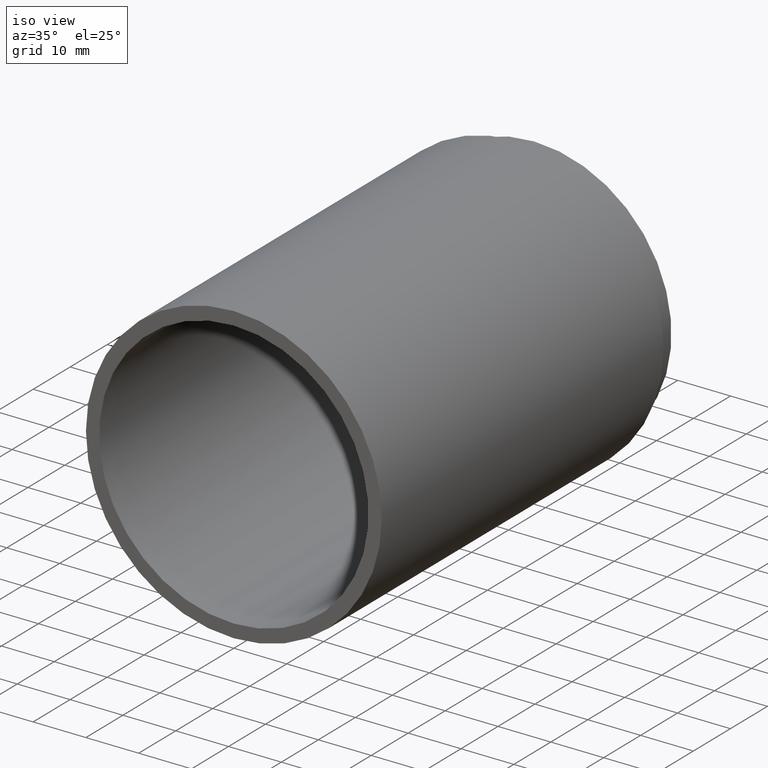
[diagram: clean part render]
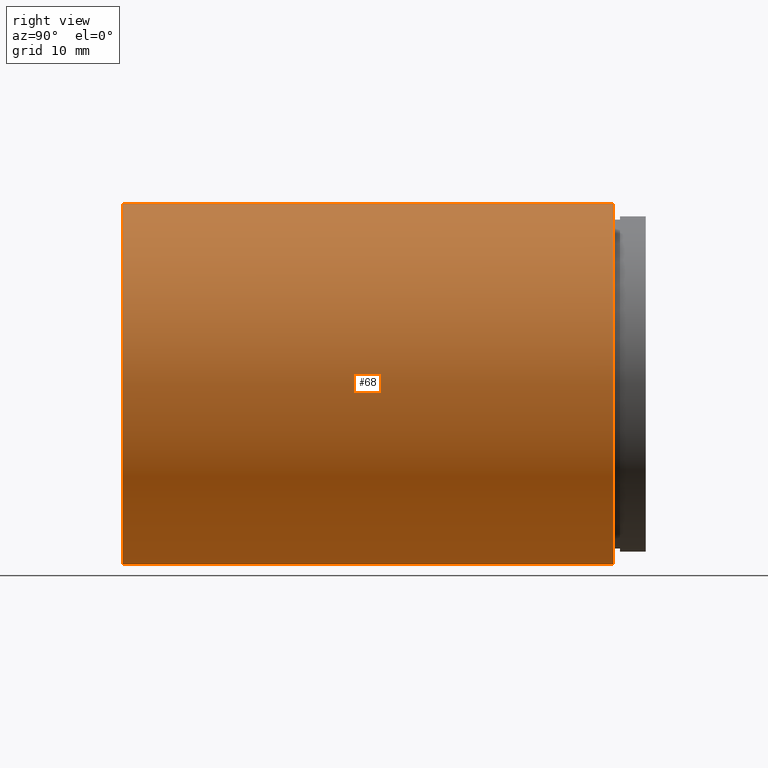
[diagram: tour spotlight — one face highlighted and labeled with its STEP entity id]
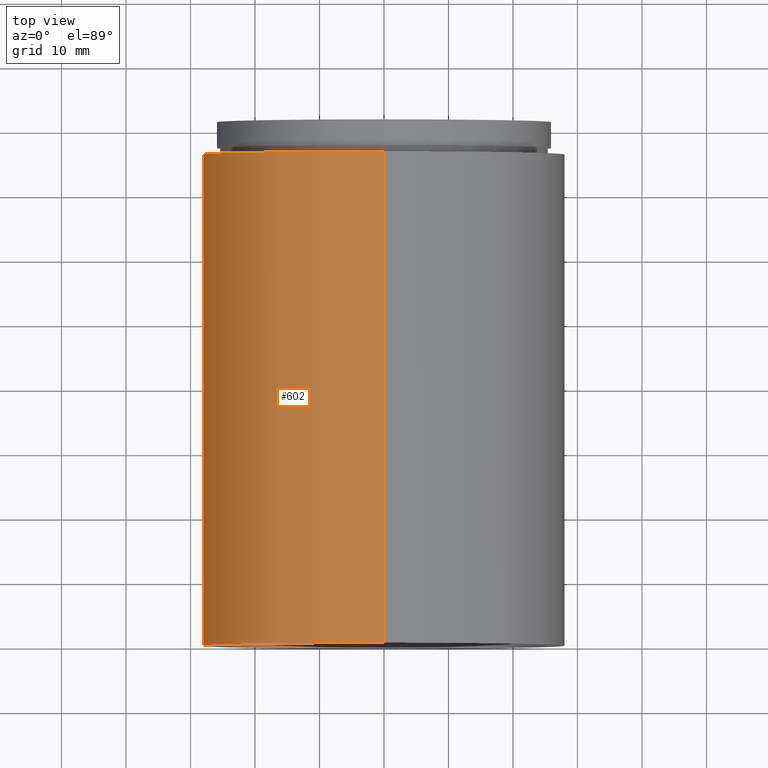
[diagram: tour spotlight — one face highlighted and labeled with its STEP entity id]
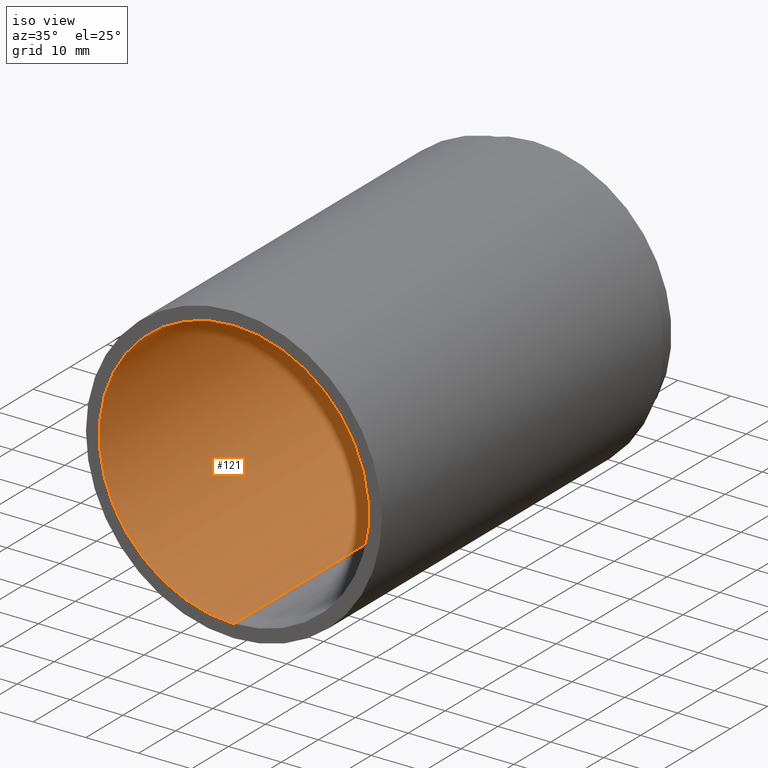
[diagram: tour spotlight — one face highlighted and labeled with its STEP entity id]
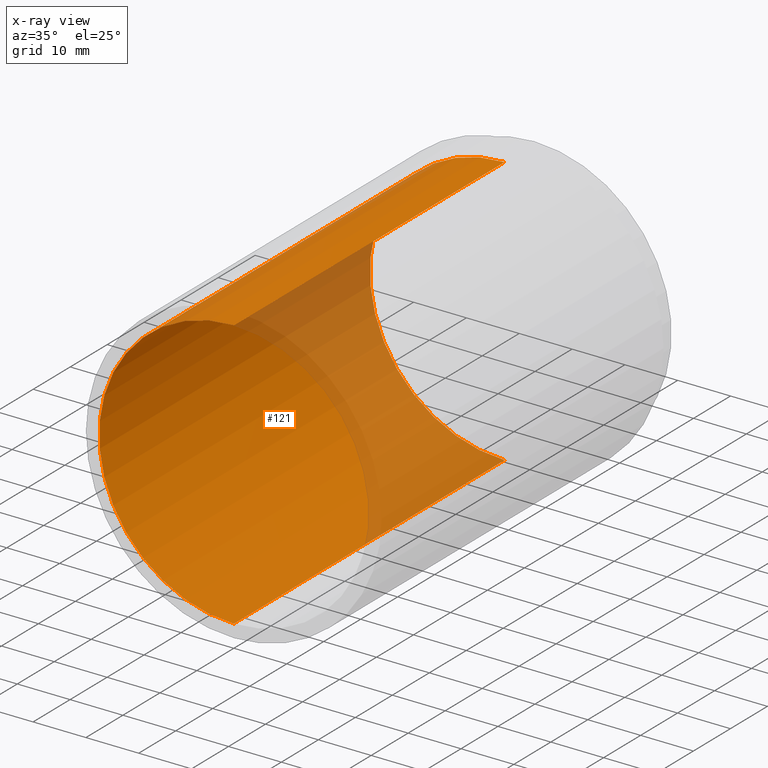
[diagram: x-ray of the same camera — body ghosted, this tour face saturated]
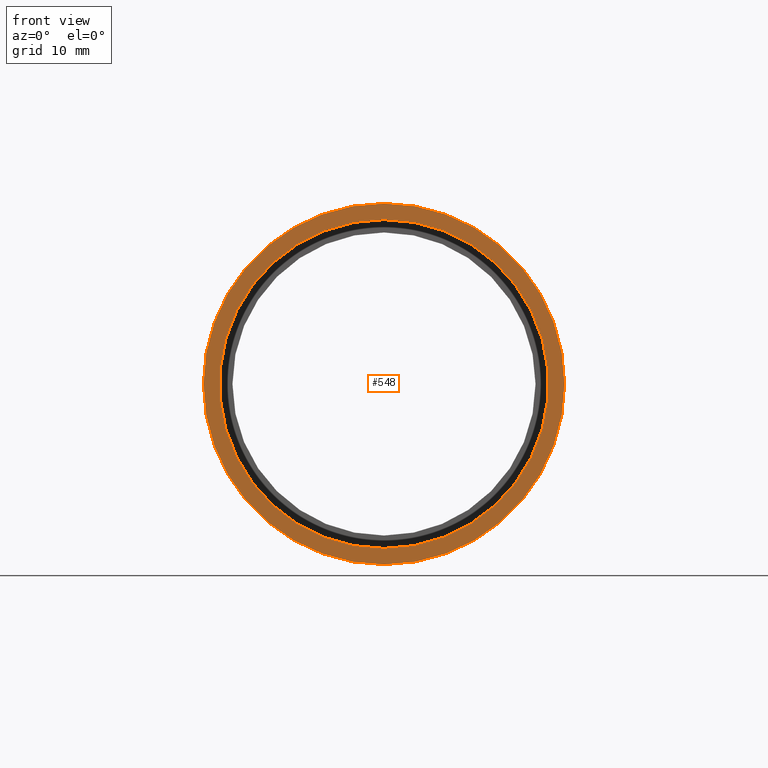
[diagram: tour spotlight — one face highlighted and labeled with its STEP entity id]
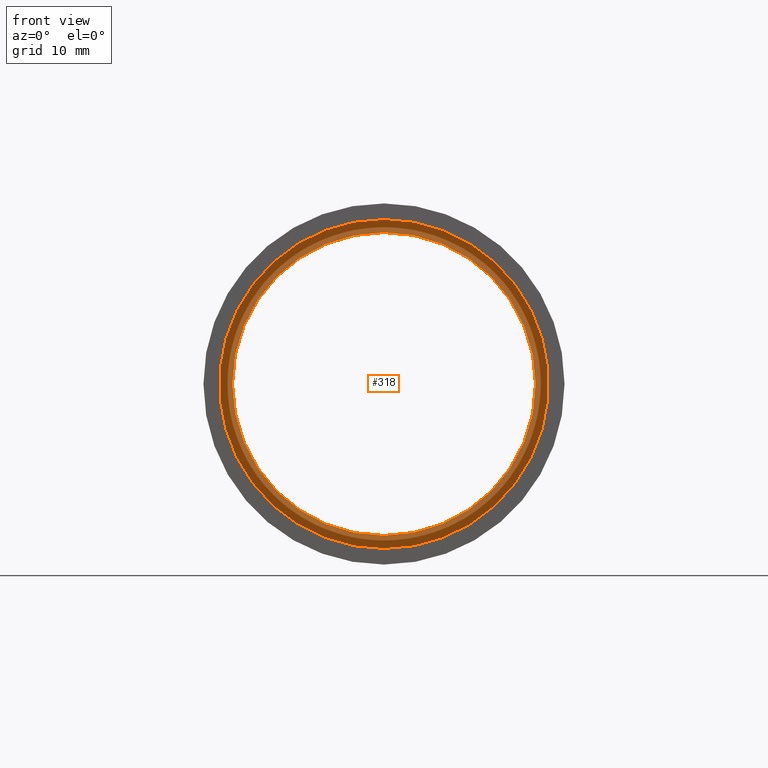
[diagram: tour spotlight — one face highlighted and labeled with its STEP entity id]
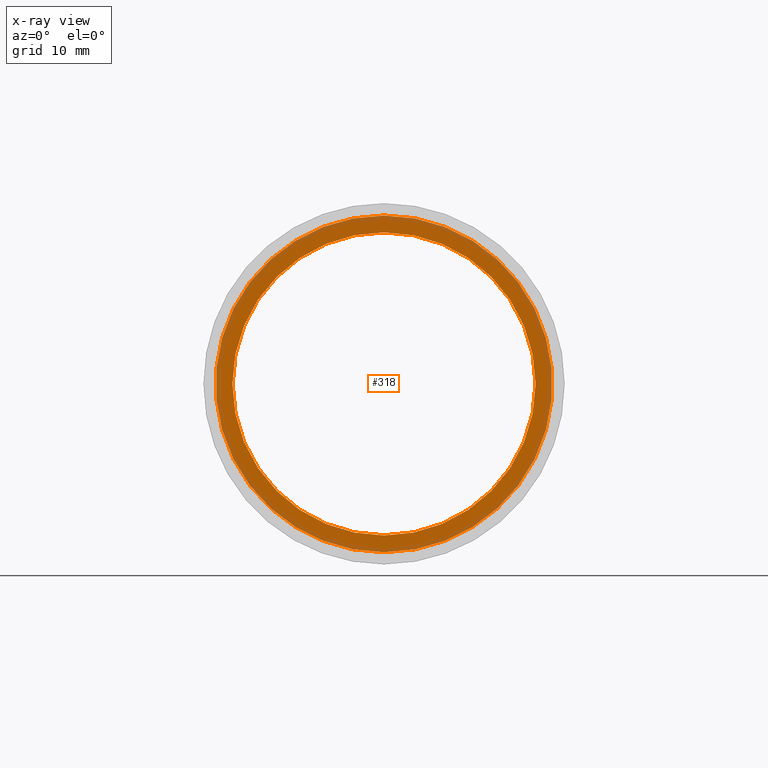
[diagram: x-ray of the same camera — body ghosted, this tour face saturated]
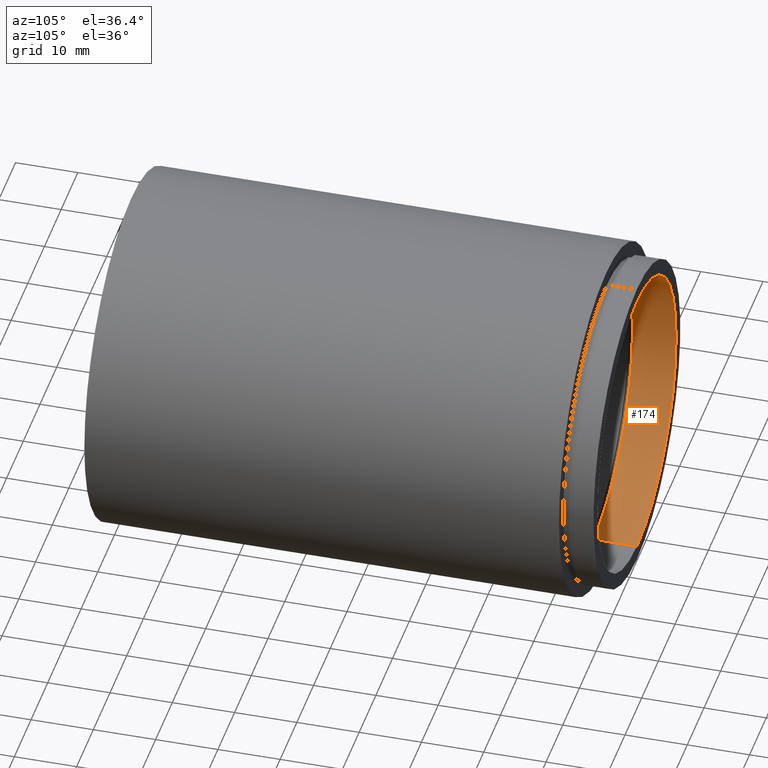
[diagram: tour spotlight — one face highlighted and labeled with its STEP entity id]
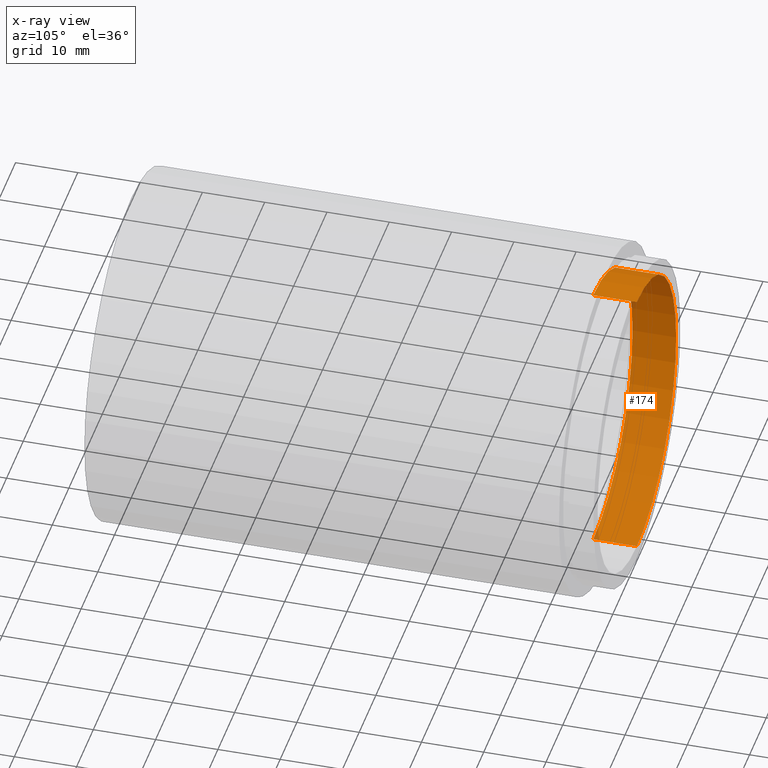
[diagram: x-ray of the same camera — body ghosted, this tour face saturated]
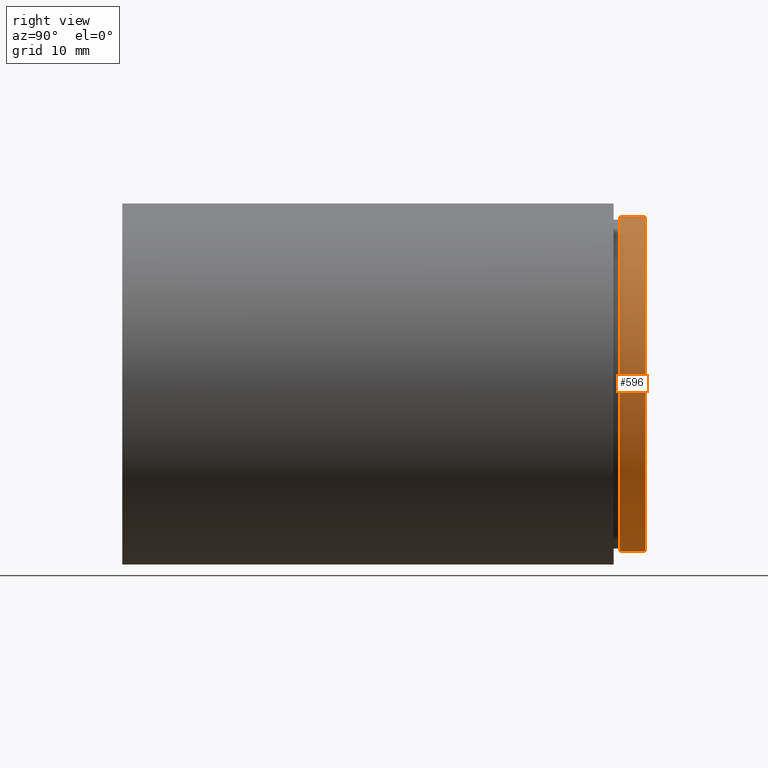
[diagram: tour spotlight — one face highlighted and labeled with its STEP entity id]
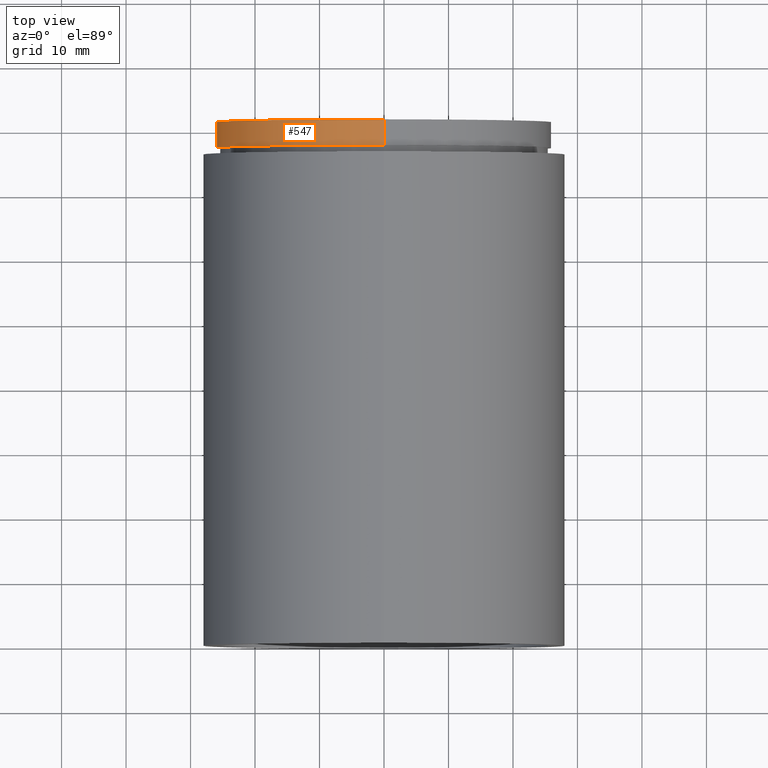
[diagram: tour spotlight — one face highlighted and labeled with its STEP entity id]
A machine part: a face-by-face anatomy tour. The part has 18 B-rep faces; the first image is the clean iso view, then the 8 largest visible faces are spotlighted one at a time (largest first), each with its STEP entity span.

Face 1 — right view, entity #68. In plain terms, the highlighted cylindrical surface (partial cylindrical patch) has radius 28 mm, axis along (-0, 1, -0).
Definition (entity closure, byte-faithful):
#4 = CARTESIAN_POINT ( 'NONE',  ( 3.429011037612590500E-015, 76.19999999999998900, -28.00000000000001100 ) ) ;
#40 = DIRECTION ( 'NONE',  ( -0.0000000000000000000, 1.000000000000000000, -0.0000000000000000000 ) ) ;
#56 = DIRECTION ( 'NONE',  ( -0.0000000000000000000, 1.000000000000000000, -0.0000000000000000000 ) ) ;
#65 = CARTESIAN_POINT ( 'NONE',  ( 0.0000000000000000000, -2.775557561562891400E-014, 0.0000000000000000000 ) ) ;
#68 = ADVANCED_FACE ( 'NONE', ( #475 ), #287, .T. ) ;
#74 = DIRECTION ( 'NONE',  ( -0.0000000000000000000, 1.000000000000000000, -0.0000000000000000000 ) ) ;
#90 = CARTESIAN_POINT ( 'NONE',  ( 3.429011037612590500E-015, 161.3761669434274500, -28.00000000000001400 ) ) ;
#126 = VECTOR ( 'NONE', #40, 1000.000000000000000 ) ;
#136 = CIRCLE ( 'NONE', #562, 28.00000000000001100 ) ;
#148 = ORIENTED_EDGE ( 'NONE', *, *, #420, .T. ) ;
#152 = CARTESIAN_POINT ( 'NONE',  ( 0.0000000000000000000, -2.775557561562891400E-014, 28.00000000000001800 ) ) ;
#191 = VECTOR ( 'NONE', #56, 1000.000000000000000 ) ;
#200 = DIRECTION ( 'NONE',  ( -0.0000000000000000000, 1.000000000000000000, -0.0000000000000000000 ) ) ;
#205 = EDGE_CURVE ( 'NONE', #393, #616, #551, .T. ) ;
#216 = CARTESIAN_POINT ( 'NONE',  ( 0.0000000000000000000, 76.19999999999998900, 28.00000000000001100 ) ) ;
#217 = ORIENTED_EDGE ( 'NONE', *, *, #463, .T. ) ;
#227 = DIRECTION ( 'NONE',  ( 0.0000000000000000000, 0.0000000000000000000, 1.000000000000000000 ) ) ;
#235 = CARTESIAN_POINT ( 'NONE',  ( 0.0000000000000000000, 161.3761669434274500, 28.00000000000001400 ) ) ;
#237 = ORIENTED_EDGE ( 'NONE', *, *, #399, .F. ) ;
#241 = CIRCLE ( 'NONE', #467, 28.00000000000001800 ) ;
#278 = ORIENTED_EDGE ( 'NONE', *, *, #205, .F. ) ;
#287 = CYLINDRICAL_SURFACE ( 'NONE', #499, 28.00000000000001400 ) ;
#338 = VERTEX_POINT ( 'NONE', #4 ) ;
#349 = DIRECTION ( 'NONE',  ( 0.0000000000000000000, 0.0000000000000000000, 1.000000000000000000 ) ) ;
#365 = EDGE_LOOP ( 'NONE', ( #217, #148, #237, #278 ) ) ;
#382 = LINE ( 'NONE', #90, #191 ) ;
#393 = VERTEX_POINT ( 'NONE', #152 ) ;
#399 = EDGE_CURVE ( 'NONE', #616, #338, #136, .T. ) ;
#420 = EDGE_CURVE ( 'NONE', #571, #338, #382, .T. ) ;
#444 = CARTESIAN_POINT ( 'NONE',  ( 3.429011037612591200E-015, -2.775557561562891400E-014, -28.00000000000002100 ) ) ;
#457 = CARTESIAN_POINT ( 'NONE',  ( 0.0000000000000000000, 161.3761669434274500, 0.0000000000000000000 ) ) ;
#463 = EDGE_CURVE ( 'NONE', #393, #571, #241, .T. ) ;
#467 = AXIS2_PLACEMENT_3D ( 'NONE', #65, #535, #586 ) ;
#475 = FACE_OUTER_BOUND ( 'NONE', #365, .T. ) ;
#485 = CARTESIAN_POINT ( 'NONE',  ( 0.0000000000000000000, 76.19999999999998900, 0.0000000000000000000 ) ) ;
#499 = AXIS2_PLACEMENT_3D ( 'NONE', #457, #74, #227 ) ;
#535 = DIRECTION ( 'NONE',  ( -0.0000000000000000000, 1.000000000000000000, -0.0000000000000000000 ) ) ;
#551 = LINE ( 'NONE', #235, #126 ) ;
#562 = AXIS2_PLACEMENT_3D ( 'NONE', #485, #200, #349 ) ;
#571 = VERTEX_POINT ( 'NONE', #444 ) ;
#586 = DIRECTION ( 'NONE',  ( 0.0000000000000000000, 0.0000000000000000000, 1.000000000000000000 ) ) ;
#616 = VERTEX_POINT ( 'NONE', #216 ) ;

Face 2 — top view, entity #602. In plain terms, the highlighted cylindrical surface (partial cylindrical patch) has radius 28 mm, axis along (-0, 1, -0).
Definition (entity closure, byte-faithful):
#4 = CARTESIAN_POINT ( 'NONE',  ( 3.429011037612590500E-015, 76.19999999999998900, -28.00000000000001100 ) ) ;
#17 = CARTESIAN_POINT ( 'NONE',  ( 0.0000000000000000000, 161.3761669434274500, 0.0000000000000000000 ) ) ;
#40 = DIRECTION ( 'NONE',  ( -0.0000000000000000000, 1.000000000000000000, -0.0000000000000000000 ) ) ;
#56 = DIRECTION ( 'NONE',  ( -0.0000000000000000000, 1.000000000000000000, -0.0000000000000000000 ) ) ;
#84 = CARTESIAN_POINT ( 'NONE',  ( 0.0000000000000000000, 76.19999999999998900, 0.0000000000000000000 ) ) ;
#90 = CARTESIAN_POINT ( 'NONE',  ( 3.429011037612590500E-015, 161.3761669434274500, -28.00000000000001400 ) ) ;
#126 = VECTOR ( 'NONE', #40, 1000.000000000000000 ) ;
#152 = CARTESIAN_POINT ( 'NONE',  ( 0.0000000000000000000, -2.775557561562891400E-014, 28.00000000000001800 ) ) ;
#160 = DIRECTION ( 'NONE',  ( 0.0000000000000000000, 0.0000000000000000000, 1.000000000000000000 ) ) ;
#182 = FACE_OUTER_BOUND ( 'NONE', #416, .T. ) ;
#186 = ORIENTED_EDGE ( 'NONE', *, *, #275, .T. ) ;
#187 = DIRECTION ( 'NONE',  ( 0.0000000000000000000, 0.0000000000000000000, 1.000000000000000000 ) ) ;
#191 = VECTOR ( 'NONE', #56, 1000.000000000000000 ) ;
#205 = EDGE_CURVE ( 'NONE', #393, #616, #551, .T. ) ;
#207 = AXIS2_PLACEMENT_3D ( 'NONE', #17, #590, #160 ) ;
#216 = CARTESIAN_POINT ( 'NONE',  ( 0.0000000000000000000, 76.19999999999998900, 28.00000000000001100 ) ) ;
#219 = ORIENTED_EDGE ( 'NONE', *, *, #205, .T. ) ;
#229 = EDGE_CURVE ( 'NONE', #338, #616, #450, .T. ) ;
#235 = CARTESIAN_POINT ( 'NONE',  ( 0.0000000000000000000, 161.3761669434274500, 28.00000000000001400 ) ) ;
#275 = EDGE_CURVE ( 'NONE', #571, #393, #380, .T. ) ;
#286 = CARTESIAN_POINT ( 'NONE',  ( 0.0000000000000000000, -2.775557561562891400E-014, 0.0000000000000000000 ) ) ;
#335 = DIRECTION ( 'NONE',  ( -0.0000000000000000000, 1.000000000000000000, -0.0000000000000000000 ) ) ;
#338 = VERTEX_POINT ( 'NONE', #4 ) ;
#380 = CIRCLE ( 'NONE', #542, 28.00000000000001800 ) ;
#382 = LINE ( 'NONE', #90, #191 ) ;
#393 = VERTEX_POINT ( 'NONE', #152 ) ;
#416 = EDGE_LOOP ( 'NONE', ( #615, #186, #219, #532 ) ) ;
#420 = EDGE_CURVE ( 'NONE', #571, #338, #382, .T. ) ;
#444 = CARTESIAN_POINT ( 'NONE',  ( 3.429011037612591200E-015, -2.775557561562891400E-014, -28.00000000000002100 ) ) ;
#450 = CIRCLE ( 'NONE', #518, 28.00000000000001100 ) ;
#472 = DIRECTION ( 'NONE',  ( -0.0000000000000000000, 1.000000000000000000, -0.0000000000000000000 ) ) ;
#517 = CYLINDRICAL_SURFACE ( 'NONE', #207, 28.00000000000001400 ) ;
#518 = AXIS2_PLACEMENT_3D ( 'NONE', #84, #472, #187 ) ;
#532 = ORIENTED_EDGE ( 'NONE', *, *, #229, .F. ) ;
#542 = AXIS2_PLACEMENT_3D ( 'NONE', #286, #335, #617 ) ;
#551 = LINE ( 'NONE', #235, #126 ) ;
#571 = VERTEX_POINT ( 'NONE', #444 ) ;
#590 = DIRECTION ( 'NONE',  ( -0.0000000000000000000, 1.000000000000000000, -0.0000000000000000000 ) ) ;
#602 = ADVANCED_FACE ( 'NONE', ( #182 ), #517, .T. ) ;
#615 = ORIENTED_EDGE ( 'NONE', *, *, #420, .F. ) ;
#616 = VERTEX_POINT ( 'NONE', #216 ) ;
#617 = DIRECTION ( 'NONE',  ( 0.0000000000000000000, 0.0000000000000000000, 1.000000000000000000 ) ) ;

Face 3 — iso view, entity #121. An x-ray twin of the same camera follows (body ghosted, this face saturated) — the face is partly hidden behind the body. In plain terms, the highlighted cylindrical surface (partial cylindrical patch) has radius 25.5 mm, axis along (-0, 1, -0).
Definition (entity closure, byte-faithful):
#1 = ORIENTED_EDGE ( 'NONE', *, *, #612, .T. ) ;
#91 = LINE ( 'NONE', #411, #560 ) ;
#121 = ADVANCED_FACE ( 'NONE', ( #606 ), #259, .F. ) ;
#123 = DIRECTION ( 'NONE',  ( -0.0000000000000000000, 1.000000000000000000, -0.0000000000000000000 ) ) ;
#125 = CARTESIAN_POINT ( 'NONE',  ( 0.0000000000000000000, 161.3761669434274500, 0.0000000000000000000 ) ) ;
#130 = EDGE_CURVE ( 'NONE', #140, #289, #419, .T. ) ;
#134 = DIRECTION ( 'NONE',  ( 0.0000000000000000000, 0.0000000000000000000, 1.000000000000000000 ) ) ;
#140 = VERTEX_POINT ( 'NONE', #516 ) ;
#154 = EDGE_CURVE ( 'NONE', #140, #469, #618, .T. ) ;
#162 = AXIS2_PLACEMENT_3D ( 'NONE', #125, #281, #134 ) ;
#163 = DIRECTION ( 'NONE',  ( -0.0000000000000000000, 1.000000000000000000, -0.0000000000000000000 ) ) ;
#195 = AXIS2_PLACEMENT_3D ( 'NONE', #329, #123, #223 ) ;
#223 = DIRECTION ( 'NONE',  ( 0.0000000000000000000, 0.0000000000000000000, 1.000000000000000000 ) ) ;
#259 = CYLINDRICAL_SURFACE ( 'NONE', #162, 25.50000000000001800 ) ;
#281 = DIRECTION ( 'NONE',  ( -0.0000000000000000000, 1.000000000000000000, -0.0000000000000000000 ) ) ;
#289 = VERTEX_POINT ( 'NONE', #622 ) ;
#290 = AXIS2_PLACEMENT_3D ( 'NONE', #364, #163, #311 ) ;
#311 = DIRECTION ( 'NONE',  ( 0.0000000000000000000, 0.0000000000000000000, 1.000000000000000000 ) ) ;
#315 = VECTOR ( 'NONE', #509, 1000.000000000000000 ) ;
#329 = CARTESIAN_POINT ( 'NONE',  ( 0.0000000000000000000, -2.775557561562891400E-014, 0.0000000000000000000 ) ) ;
#364 = CARTESIAN_POINT ( 'NONE',  ( 0.0000000000000000000, 73.19999999999998900, 0.0000000000000000000 ) ) ;
#377 = ORIENTED_EDGE ( 'NONE', *, *, #154, .T. ) ;
#411 = CARTESIAN_POINT ( 'NONE',  ( 0.0000000000000000000, 161.3761669434274500, 25.50000000000001800 ) ) ;
#419 = CIRCLE ( 'NONE', #195, 25.50000000000001800 ) ;
#458 = ORIENTED_EDGE ( 'NONE', *, *, #130, .F. ) ;
#462 = VERTEX_POINT ( 'NONE', #541 ) ;
#469 = VERTEX_POINT ( 'NONE', #539 ) ;
#484 = EDGE_LOOP ( 'NONE', ( #458, #377, #1, #623 ) ) ;
#509 = DIRECTION ( 'NONE',  ( -0.0000000000000000000, 1.000000000000000000, -0.0000000000000000000 ) ) ;
#516 = CARTESIAN_POINT ( 'NONE',  ( 3.122849337825753000E-015, -2.775557561562891400E-014, -25.50000000000001800 ) ) ;
#531 = DIRECTION ( 'NONE',  ( -0.0000000000000000000, 1.000000000000000000, -0.0000000000000000000 ) ) ;
#539 = CARTESIAN_POINT ( 'NONE',  ( 3.122849337825753000E-015, 73.19999999999998900, -25.50000000000001800 ) ) ;
#541 = CARTESIAN_POINT ( 'NONE',  ( 0.0000000000000000000, 73.19999999999998900, 25.50000000000001800 ) ) ;
#557 = EDGE_CURVE ( 'NONE', #289, #462, #91, .T. ) ;
#560 = VECTOR ( 'NONE', #531, 1000.000000000000000 ) ;
#563 = CARTESIAN_POINT ( 'NONE',  ( 3.122849337825753000E-015, 161.3761669434274500, -25.50000000000001800 ) ) ;
#592 = CIRCLE ( 'NONE', #290, 25.50000000000001800 ) ;
#606 = FACE_OUTER_BOUND ( 'NONE', #484, .T. ) ;
#612 = EDGE_CURVE ( 'NONE', #469, #462, #592, .T. ) ;
#618 = LINE ( 'NONE', #563, #315 ) ;
#622 = CARTESIAN_POINT ( 'NONE',  ( 0.0000000000000000000, -2.775557561562891400E-014, 25.50000000000001800 ) ) ;
#623 = ORIENTED_EDGE ( 'NONE', *, *, #557, .F. ) ;

Face 4 — front view, entity #548. In plain terms, the highlighted planar face has unit normal (-0, 1, 0).
Definition (entity closure, byte-faithful):
#5 = AXIS2_PLACEMENT_3D ( 'NONE', #212, #544, #16 ) ;
#8 = ORIENTED_EDGE ( 'NONE', *, *, #275, .F. ) ;
#10 = EDGE_CURVE ( 'NONE', #289, #140, #236, .T. ) ;
#16 = DIRECTION ( 'NONE',  ( 0.0000000000000000000, 0.0000000000000000000, 1.000000000000000000 ) ) ;
#30 = ORIENTED_EDGE ( 'NONE', *, *, #130, .T. ) ;
#65 = CARTESIAN_POINT ( 'NONE',  ( 0.0000000000000000000, -2.775557561562891400E-014, 0.0000000000000000000 ) ) ;
#110 = DIRECTION ( 'NONE',  ( 0.0000000000000000000, 0.0000000000000000000, 1.000000000000000000 ) ) ;
#123 = DIRECTION ( 'NONE',  ( -0.0000000000000000000, 1.000000000000000000, -0.0000000000000000000 ) ) ;
#130 = EDGE_CURVE ( 'NONE', #140, #289, #419, .T. ) ;
#140 = VERTEX_POINT ( 'NONE', #516 ) ;
#141 = EDGE_LOOP ( 'NONE', ( #565, #8 ) ) ;
#150 = EDGE_LOOP ( 'NONE', ( #155, #30 ) ) ;
#152 = CARTESIAN_POINT ( 'NONE',  ( 0.0000000000000000000, -2.775557561562891400E-014, 28.00000000000001800 ) ) ;
#155 = ORIENTED_EDGE ( 'NONE', *, *, #10, .T. ) ;
#195 = AXIS2_PLACEMENT_3D ( 'NONE', #329, #123, #223 ) ;
#212 = CARTESIAN_POINT ( 'NONE',  ( 28.00000000000001800, -1.408179048343280700E-014, 0.0000000000000000000 ) ) ;
#215 = FACE_BOUND ( 'NONE', #150, .T. ) ;
#223 = DIRECTION ( 'NONE',  ( 0.0000000000000000000, 0.0000000000000000000, 1.000000000000000000 ) ) ;
#236 = CIRCLE ( 'NONE', #506, 25.50000000000001800 ) ;
#241 = CIRCLE ( 'NONE', #467, 28.00000000000001800 ) ;
#269 = CARTESIAN_POINT ( 'NONE',  ( 0.0000000000000000000, -2.775557561562891400E-014, 0.0000000000000000000 ) ) ;
#275 = EDGE_CURVE ( 'NONE', #571, #393, #380, .T. ) ;
#286 = CARTESIAN_POINT ( 'NONE',  ( 0.0000000000000000000, -2.775557561562891400E-014, 0.0000000000000000000 ) ) ;
#289 = VERTEX_POINT ( 'NONE', #622 ) ;
#329 = CARTESIAN_POINT ( 'NONE',  ( 0.0000000000000000000, -2.775557561562891400E-014, 0.0000000000000000000 ) ) ;
#335 = DIRECTION ( 'NONE',  ( -0.0000000000000000000, 1.000000000000000000, -0.0000000000000000000 ) ) ;
#380 = CIRCLE ( 'NONE', #542, 28.00000000000001800 ) ;
#393 = VERTEX_POINT ( 'NONE', #152 ) ;
#419 = CIRCLE ( 'NONE', #195, 25.50000000000001800 ) ;
#442 = PLANE ( 'NONE',  #5 ) ;
#444 = CARTESIAN_POINT ( 'NONE',  ( 3.429011037612591200E-015, -2.775557561562891400E-014, -28.00000000000002100 ) ) ;
#463 = EDGE_CURVE ( 'NONE', #393, #571, #241, .T. ) ;
#467 = AXIS2_PLACEMENT_3D ( 'NONE', #65, #535, #586 ) ;
#500 = DIRECTION ( 'NONE',  ( -0.0000000000000000000, 1.000000000000000000, -0.0000000000000000000 ) ) ;
#506 = AXIS2_PLACEMENT_3D ( 'NONE', #269, #500, #110 ) ;
#516 = CARTESIAN_POINT ( 'NONE',  ( 3.122849337825753000E-015, -2.775557561562891400E-014, -25.50000000000001800 ) ) ;
#535 = DIRECTION ( 'NONE',  ( -0.0000000000000000000, 1.000000000000000000, -0.0000000000000000000 ) ) ;
#542 = AXIS2_PLACEMENT_3D ( 'NONE', #286, #335, #617 ) ;
#544 = DIRECTION ( 'NONE',  ( -0.0000000000000000000, 1.000000000000000000, 0.0000000000000000000 ) ) ;
#548 = ADVANCED_FACE ( 'NONE', ( #591, #215 ), #442, .F. ) ;
#565 = ORIENTED_EDGE ( 'NONE', *, *, #463, .F. ) ;
#571 = VERTEX_POINT ( 'NONE', #444 ) ;
#586 = DIRECTION ( 'NONE',  ( 0.0000000000000000000, 0.0000000000000000000, 1.000000000000000000 ) ) ;
#591 = FACE_OUTER_BOUND ( 'NONE', #141, .T. ) ;
#617 = DIRECTION ( 'NONE',  ( 0.0000000000000000000, 0.0000000000000000000, 1.000000000000000000 ) ) ;
#622 = CARTESIAN_POINT ( 'NONE',  ( 0.0000000000000000000, -2.775557561562891400E-014, 25.50000000000001800 ) ) ;

Face 5 — front view, entity #318. An x-ray twin of the same camera follows (body ghosted, this face saturated) — the face is partly hidden behind the body. In plain terms, the highlighted planar face has unit normal (-0, 1, 0).
Definition (entity closure, byte-faithful):
#25 = CARTESIAN_POINT ( 'NONE',  ( 0.0000000000000000000, 74.19999999999998900, 0.0000000000000000000 ) ) ;
#29 = VERTEX_POINT ( 'NONE', #72 ) ;
#48 = CIRCLE ( 'NONE', #524, 23.50000000000001400 ) ;
#54 = AXIS2_PLACEMENT_3D ( 'NONE', #25, #423, #461 ) ;
#64 = EDGE_CURVE ( 'NONE', #29, #378, #386, .T. ) ;
#72 = CARTESIAN_POINT ( 'NONE',  ( 2.877919977996281900E-015, 74.19999999999998900, -23.50000000000001400 ) ) ;
#77 = EDGE_CURVE ( 'NONE', #378, #29, #48, .T. ) ;
#83 = VERTEX_POINT ( 'NONE', #466 ) ;
#96 = PLANE ( 'NONE',  #220 ) ;
#102 = DIRECTION ( 'NONE',  ( -0.0000000000000000000, 1.000000000000000000, -0.0000000000000000000 ) ) ;
#114 = FACE_OUTER_BOUND ( 'NONE', #502, .T. ) ;
#158 = CARTESIAN_POINT ( 'NONE',  ( 0.0000000000000000000, 74.19999999999998900, 0.0000000000000000000 ) ) ;
#177 = CARTESIAN_POINT ( 'NONE',  ( 0.0000000000000000000, 74.19999999999998900, 0.0000000000000000000 ) ) ;
#179 = ORIENTED_EDGE ( 'NONE', *, *, #489, .F. ) ;
#202 = CARTESIAN_POINT ( 'NONE',  ( 0.0000000000000000000, 74.19999999999998900, 23.50000000000001400 ) ) ;
#210 = CARTESIAN_POINT ( 'NONE',  ( 0.0000000000000000000, 74.19999999999998900, 0.0000000000000000000 ) ) ;
#220 = AXIS2_PLACEMENT_3D ( 'NONE', #488, #529, #438 ) ;
#222 = DIRECTION ( 'NONE',  ( -0.0000000000000000000, 1.000000000000000000, -0.0000000000000000000 ) ) ;
#226 = CIRCLE ( 'NONE', #266, 26.10000000000001600 ) ;
#231 = ORIENTED_EDGE ( 'NONE', *, *, #77, .T. ) ;
#250 = CIRCLE ( 'NONE', #482, 26.10000000000001600 ) ;
#257 = DIRECTION ( 'NONE',  ( 0.0000000000000000000, 0.0000000000000000000, 1.000000000000000000 ) ) ;
#266 = AXIS2_PLACEMENT_3D ( 'NONE', #210, #102, #306 ) ;
#306 = DIRECTION ( 'NONE',  ( 0.0000000000000000000, 0.0000000000000000000, 1.000000000000000000 ) ) ;
#318 = ADVANCED_FACE ( 'NONE', ( #114, #611 ), #96, .F. ) ;
#327 = DIRECTION ( 'NONE',  ( 0.0000000000000000000, 0.0000000000000000000, 1.000000000000000000 ) ) ;
#347 = EDGE_LOOP ( 'NONE', ( #231, #417 ) ) ;
#354 = CARTESIAN_POINT ( 'NONE',  ( 3.196328145774593900E-015, 74.19999999999998900, -26.10000000000001600 ) ) ;
#378 = VERTEX_POINT ( 'NONE', #202 ) ;
#386 = CIRCLE ( 'NONE', #54, 23.50000000000001400 ) ;
#417 = ORIENTED_EDGE ( 'NONE', *, *, #64, .T. ) ;
#423 = DIRECTION ( 'NONE',  ( -0.0000000000000000000, 1.000000000000000000, -0.0000000000000000000 ) ) ;
#430 = ORIENTED_EDGE ( 'NONE', *, *, #582, .F. ) ;
#438 = DIRECTION ( 'NONE',  ( 0.0000000000000000000, 0.0000000000000000000, 1.000000000000000000 ) ) ;
#461 = DIRECTION ( 'NONE',  ( 0.0000000000000000000, 0.0000000000000000000, 1.000000000000000000 ) ) ;
#466 = CARTESIAN_POINT ( 'NONE',  ( 0.0000000000000000000, 74.19999999999998900, 26.10000000000001600 ) ) ;
#482 = AXIS2_PLACEMENT_3D ( 'NONE', #158, #493, #257 ) ;
#488 = CARTESIAN_POINT ( 'NONE',  ( 26.10000000000001600, 74.19999999999998900, 0.0000000000000000000 ) ) ;
#489 = EDGE_CURVE ( 'NONE', #534, #83, #226, .T. ) ;
#493 = DIRECTION ( 'NONE',  ( -0.0000000000000000000, 1.000000000000000000, -0.0000000000000000000 ) ) ;
#502 = EDGE_LOOP ( 'NONE', ( #430, #179 ) ) ;
#524 = AXIS2_PLACEMENT_3D ( 'NONE', #177, #222, #327 ) ;
#529 = DIRECTION ( 'NONE',  ( -0.0000000000000000000, 1.000000000000000000, 0.0000000000000000000 ) ) ;
#534 = VERTEX_POINT ( 'NONE', #354 ) ;
#582 = EDGE_CURVE ( 'NONE', #83, #534, #250, .T. ) ;
#611 = FACE_BOUND ( 'NONE', #347, .T. ) ;

Face 6 — auxiliary view, entity #174. An x-ray twin of the same camera follows (body ghosted, this face saturated) — the face is partly hidden behind the body. In plain terms, the highlighted cylindrical surface (partial cylindrical patch) has radius 23.5 mm, axis along (-0, 1, -0).
Definition (entity closure, byte-faithful):
#25 = CARTESIAN_POINT ( 'NONE',  ( 0.0000000000000000000, 74.19999999999998900, 0.0000000000000000000 ) ) ;
#29 = VERTEX_POINT ( 'NONE', #72 ) ;
#42 = EDGE_CURVE ( 'NONE', #378, #246, #353, .T. ) ;
#54 = AXIS2_PLACEMENT_3D ( 'NONE', #25, #423, #461 ) ;
#64 = EDGE_CURVE ( 'NONE', #29, #378, #386, .T. ) ;
#70 = AXIS2_PLACEMENT_3D ( 'NONE', #495, #206, #585 ) ;
#72 = CARTESIAN_POINT ( 'NONE',  ( 2.877919977996281900E-015, 74.19999999999998900, -23.50000000000001400 ) ) ;
#79 = CARTESIAN_POINT ( 'NONE',  ( 0.0000000000000000000, 161.3761669434274500, 0.0000000000000000000 ) ) ;
#120 = DIRECTION ( 'NONE',  ( -0.0000000000000000000, 1.000000000000000000, -0.0000000000000000000 ) ) ;
#156 = ORIENTED_EDGE ( 'NONE', *, *, #42, .F. ) ;
#174 = ADVANCED_FACE ( 'NONE', ( #424 ), #181, .F. ) ;
#180 = DIRECTION ( 'NONE',  ( -0.0000000000000000000, 1.000000000000000000, -0.0000000000000000000 ) ) ;
#181 = CYLINDRICAL_SURFACE ( 'NONE', #316, 23.50000000000001400 ) ;
#185 = ORIENTED_EDGE ( 'NONE', *, *, #64, .F. ) ;
#202 = CARTESIAN_POINT ( 'NONE',  ( 0.0000000000000000000, 74.19999999999998900, 23.50000000000001400 ) ) ;
#206 = DIRECTION ( 'NONE',  ( -0.0000000000000000000, 1.000000000000000000, -0.0000000000000000000 ) ) ;
#211 = ORIENTED_EDGE ( 'NONE', *, *, #428, .T. ) ;
#218 = CARTESIAN_POINT ( 'NONE',  ( 0.0000000000000000000, 161.3761669434274500, 23.50000000000001400 ) ) ;
#228 = LINE ( 'NONE', #527, #326 ) ;
#246 = VERTEX_POINT ( 'NONE', #476 ) ;
#264 = VERTEX_POINT ( 'NONE', #474 ) ;
#271 = EDGE_LOOP ( 'NONE', ( #185, #526, #211, #156 ) ) ;
#316 = AXIS2_PLACEMENT_3D ( 'NONE', #79, #180, #433 ) ;
#326 = VECTOR ( 'NONE', #348, 1000.000000000000000 ) ;
#348 = DIRECTION ( 'NONE',  ( -0.0000000000000000000, 1.000000000000000000, -0.0000000000000000000 ) ) ;
#353 = LINE ( 'NONE', #218, #401 ) ;
#362 = EDGE_CURVE ( 'NONE', #29, #264, #228, .T. ) ;
#378 = VERTEX_POINT ( 'NONE', #202 ) ;
#386 = CIRCLE ( 'NONE', #54, 23.50000000000001400 ) ;
#401 = VECTOR ( 'NONE', #120, 1000.000000000000000 ) ;
#423 = DIRECTION ( 'NONE',  ( -0.0000000000000000000, 1.000000000000000000, -0.0000000000000000000 ) ) ;
#424 = FACE_OUTER_BOUND ( 'NONE', #271, .T. ) ;
#428 = EDGE_CURVE ( 'NONE', #264, #246, #540, .T. ) ;
#433 = DIRECTION ( 'NONE',  ( 0.0000000000000000000, 0.0000000000000000000, 1.000000000000000000 ) ) ;
#461 = DIRECTION ( 'NONE',  ( 0.0000000000000000000, 0.0000000000000000000, 1.000000000000000000 ) ) ;
#474 = CARTESIAN_POINT ( 'NONE',  ( 2.877919977996281900E-015, 81.19999999999998900, -23.50000000000001400 ) ) ;
#476 = CARTESIAN_POINT ( 'NONE',  ( 0.0000000000000000000, 81.19999999999998900, 23.50000000000001400 ) ) ;
#495 = CARTESIAN_POINT ( 'NONE',  ( 0.0000000000000000000, 81.19999999999998900, 0.0000000000000000000 ) ) ;
#526 = ORIENTED_EDGE ( 'NONE', *, *, #362, .T. ) ;
#527 = CARTESIAN_POINT ( 'NONE',  ( 2.877919977996281900E-015, 161.3761669434274500, -23.50000000000001400 ) ) ;
#540 = CIRCLE ( 'NONE', #70, 23.50000000000001400 ) ;
#585 = DIRECTION ( 'NONE',  ( 0.0000000000000000000, 0.0000000000000000000, 1.000000000000000000 ) ) ;

Face 7 — right view, entity #596. In plain terms, the highlighted cylindrical surface (partial cylindrical patch) has radius 26 mm, axis along (-0, 1, -0).
Definition (entity closure, byte-faithful):
#6 = DIRECTION ( 'NONE',  ( -0.0000000000000000000, 1.000000000000000000, -0.0000000000000000000 ) ) ;
#69 = VECTOR ( 'NONE', #533, 1000.000000000000000 ) ;
#97 = CARTESIAN_POINT ( 'NONE',  ( 3.184081677783119400E-015, 81.19999999999998900, -26.00000000000001100 ) ) ;
#144 = EDGE_CURVE ( 'NONE', #265, #355, #559, .T. ) ;
#147 = CARTESIAN_POINT ( 'NONE',  ( 3.184081677783119400E-015, 77.19999999999998900, -26.00000000000001100 ) ) ;
#183 = LINE ( 'NONE', #575, #282 ) ;
#198 = LINE ( 'NONE', #574, #69 ) ;
#199 = AXIS2_PLACEMENT_3D ( 'NONE', #302, #408, #297 ) ;
#201 = ORIENTED_EDGE ( 'NONE', *, *, #477, .F. ) ;
#265 = VERTEX_POINT ( 'NONE', #384 ) ;
#268 = FACE_OUTER_BOUND ( 'NONE', #545, .T. ) ;
#282 = VECTOR ( 'NONE', #6, 1000.000000000000000 ) ;
#294 = CYLINDRICAL_SURFACE ( 'NONE', #392, 26.00000000000001100 ) ;
#297 = DIRECTION ( 'NONE',  ( 0.0000000000000000000, 0.0000000000000000000, 1.000000000000000000 ) ) ;
#300 = CARTESIAN_POINT ( 'NONE',  ( 0.0000000000000000000, 81.19999999999998900, 26.00000000000001100 ) ) ;
#302 = CARTESIAN_POINT ( 'NONE',  ( 0.0000000000000000000, 81.19999999999998900, 0.0000000000000000000 ) ) ;
#308 = CIRCLE ( 'NONE', #199, 26.00000000000001100 ) ;
#313 = ORIENTED_EDGE ( 'NONE', *, *, #368, .F. ) ;
#332 = ORIENTED_EDGE ( 'NONE', *, *, #407, .T. ) ;
#355 = VERTEX_POINT ( 'NONE', #147 ) ;
#368 = EDGE_CURVE ( 'NONE', #265, #588, #198, .T. ) ;
#384 = CARTESIAN_POINT ( 'NONE',  ( 0.0000000000000000000, 77.19999999999998900, 26.00000000000001100 ) ) ;
#387 = VERTEX_POINT ( 'NONE', #97 ) ;
#392 = AXIS2_PLACEMENT_3D ( 'NONE', #406, #452, #415 ) ;
#406 = CARTESIAN_POINT ( 'NONE',  ( 0.0000000000000000000, 161.3761669434274500, 0.0000000000000000000 ) ) ;
#407 = EDGE_CURVE ( 'NONE', #355, #387, #183, .T. ) ;
#408 = DIRECTION ( 'NONE',  ( -0.0000000000000000000, 1.000000000000000000, -0.0000000000000000000 ) ) ;
#415 = DIRECTION ( 'NONE',  ( 0.0000000000000000000, 0.0000000000000000000, 1.000000000000000000 ) ) ;
#421 = CARTESIAN_POINT ( 'NONE',  ( 0.0000000000000000000, 77.19999999999998900, 0.0000000000000000000 ) ) ;
#452 = DIRECTION ( 'NONE',  ( -0.0000000000000000000, 1.000000000000000000, -0.0000000000000000000 ) ) ;
#477 = EDGE_CURVE ( 'NONE', #588, #387, #308, .T. ) ;
#533 = DIRECTION ( 'NONE',  ( -0.0000000000000000000, 1.000000000000000000, -0.0000000000000000000 ) ) ;
#545 = EDGE_LOOP ( 'NONE', ( #594, #332, #201, #313 ) ) ;
#558 = DIRECTION ( 'NONE',  ( -0.0000000000000000000, 1.000000000000000000, -0.0000000000000000000 ) ) ;
#559 = CIRCLE ( 'NONE', #568, 26.00000000000001100 ) ;
#568 = AXIS2_PLACEMENT_3D ( 'NONE', #421, #558, #608 ) ;
#574 = CARTESIAN_POINT ( 'NONE',  ( 0.0000000000000000000, 161.3761669434274500, 26.00000000000001100 ) ) ;
#575 = CARTESIAN_POINT ( 'NONE',  ( 3.184081677783119400E-015, 161.3761669434274500, -26.00000000000001100 ) ) ;
#588 = VERTEX_POINT ( 'NONE', #300 ) ;
#594 = ORIENTED_EDGE ( 'NONE', *, *, #144, .T. ) ;
#596 = ADVANCED_FACE ( 'NONE', ( #268 ), #294, .T. ) ;
#608 = DIRECTION ( 'NONE',  ( 0.0000000000000000000, 0.0000000000000000000, 1.000000000000000000 ) ) ;

Face 8 — top view, entity #547. In plain terms, the highlighted cylindrical surface (partial cylindrical patch) has radius 26 mm, axis along (-0, 1, -0).
Definition (entity closure, byte-faithful):
#3 = CIRCLE ( 'NONE', #330, 26.00000000000001100 ) ;
#6 = DIRECTION ( 'NONE',  ( -0.0000000000000000000, 1.000000000000000000, -0.0000000000000000000 ) ) ;
#34 = DIRECTION ( 'NONE',  ( -0.0000000000000000000, 1.000000000000000000, -0.0000000000000000000 ) ) ;
#60 = CARTESIAN_POINT ( 'NONE',  ( 0.0000000000000000000, 161.3761669434274500, 0.0000000000000000000 ) ) ;
#69 = VECTOR ( 'NONE', #533, 1000.000000000000000 ) ;
#97 = CARTESIAN_POINT ( 'NONE',  ( 3.184081677783119400E-015, 81.19999999999998900, -26.00000000000001100 ) ) ;
#105 = DIRECTION ( 'NONE',  ( -0.0000000000000000000, 1.000000000000000000, -0.0000000000000000000 ) ) ;
#147 = CARTESIAN_POINT ( 'NONE',  ( 3.184081677783119400E-015, 77.19999999999998900, -26.00000000000001100 ) ) ;
#170 = EDGE_LOOP ( 'NONE', ( #296, #494, #171, #193 ) ) ;
#171 = ORIENTED_EDGE ( 'NONE', *, *, #368, .T. ) ;
#183 = LINE ( 'NONE', #575, #282 ) ;
#193 = ORIENTED_EDGE ( 'NONE', *, *, #385, .F. ) ;
#197 = DIRECTION ( 'NONE',  ( 0.0000000000000000000, 0.0000000000000000000, 1.000000000000000000 ) ) ;
#198 = LINE ( 'NONE', #574, #69 ) ;
#221 = AXIS2_PLACEMENT_3D ( 'NONE', #233, #34, #283 ) ;
#233 = CARTESIAN_POINT ( 'NONE',  ( 0.0000000000000000000, 77.19999999999998900, 0.0000000000000000000 ) ) ;
#248 = AXIS2_PLACEMENT_3D ( 'NONE', #60, #105, #449 ) ;
#253 = CARTESIAN_POINT ( 'NONE',  ( 0.0000000000000000000, 81.19999999999998900, 0.0000000000000000000 ) ) ;
#254 = EDGE_CURVE ( 'NONE', #355, #265, #573, .T. ) ;
#265 = VERTEX_POINT ( 'NONE', #384 ) ;
#282 = VECTOR ( 'NONE', #6, 1000.000000000000000 ) ;
#283 = DIRECTION ( 'NONE',  ( 0.0000000000000000000, 0.0000000000000000000, 1.000000000000000000 ) ) ;
#296 = ORIENTED_EDGE ( 'NONE', *, *, #407, .F. ) ;
#299 = DIRECTION ( 'NONE',  ( -0.0000000000000000000, 1.000000000000000000, -0.0000000000000000000 ) ) ;
#300 = CARTESIAN_POINT ( 'NONE',  ( 0.0000000000000000000, 81.19999999999998900, 26.00000000000001100 ) ) ;
#330 = AXIS2_PLACEMENT_3D ( 'NONE', #253, #299, #197 ) ;
#341 = CYLINDRICAL_SURFACE ( 'NONE', #248, 26.00000000000001100 ) ;
#355 = VERTEX_POINT ( 'NONE', #147 ) ;
#368 = EDGE_CURVE ( 'NONE', #265, #588, #198, .T. ) ;
#384 = CARTESIAN_POINT ( 'NONE',  ( 0.0000000000000000000, 77.19999999999998900, 26.00000000000001100 ) ) ;
#385 = EDGE_CURVE ( 'NONE', #387, #588, #3, .T. ) ;
#387 = VERTEX_POINT ( 'NONE', #97 ) ;
#407 = EDGE_CURVE ( 'NONE', #355, #387, #183, .T. ) ;
#449 = DIRECTION ( 'NONE',  ( 0.0000000000000000000, 0.0000000000000000000, 1.000000000000000000 ) ) ;
#494 = ORIENTED_EDGE ( 'NONE', *, *, #254, .T. ) ;
#533 = DIRECTION ( 'NONE',  ( -0.0000000000000000000, 1.000000000000000000, -0.0000000000000000000 ) ) ;
#547 = ADVANCED_FACE ( 'NONE', ( #552 ), #341, .T. ) ;
#552 = FACE_OUTER_BOUND ( 'NONE', #170, .T. ) ;
#573 = CIRCLE ( 'NONE', #221, 26.00000000000001100 ) ;
#574 = CARTESIAN_POINT ( 'NONE',  ( 0.0000000000000000000, 161.3761669434274500, 26.00000000000001100 ) ) ;
#575 = CARTESIAN_POINT ( 'NONE',  ( 3.184081677783119400E-015, 161.3761669434274500, -26.00000000000001100 ) ) ;
#588 = VERTEX_POINT ( 'NONE', #300 ) ;